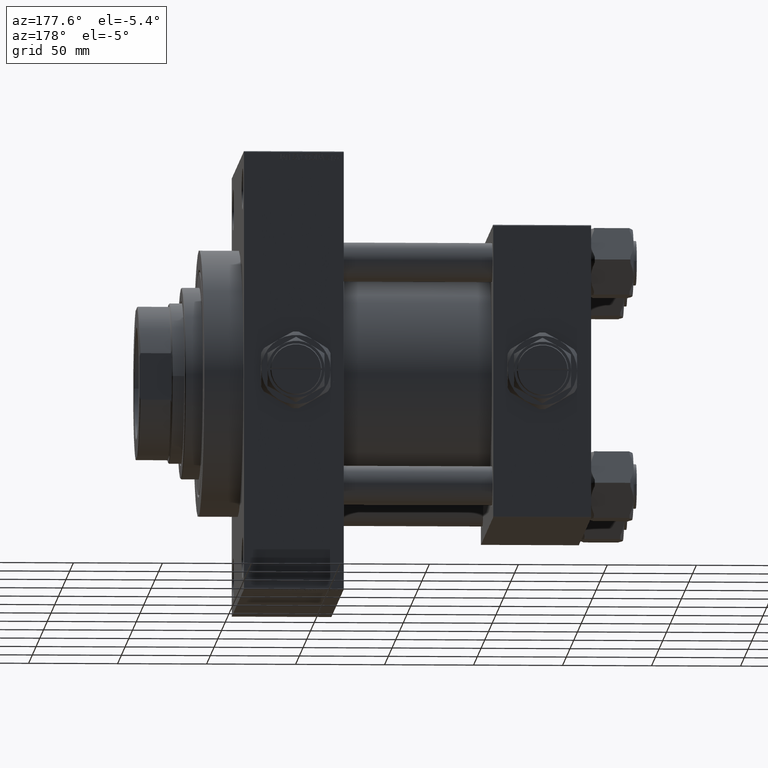
[diagram: clean part render]
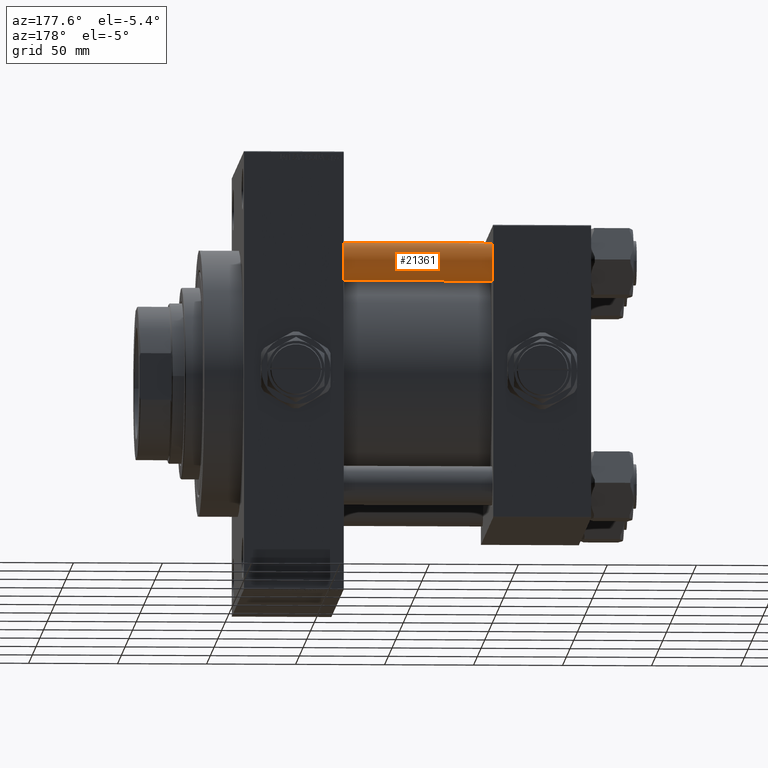
[diagram: same view with one face highlighted and labeled with its STEP entity id]
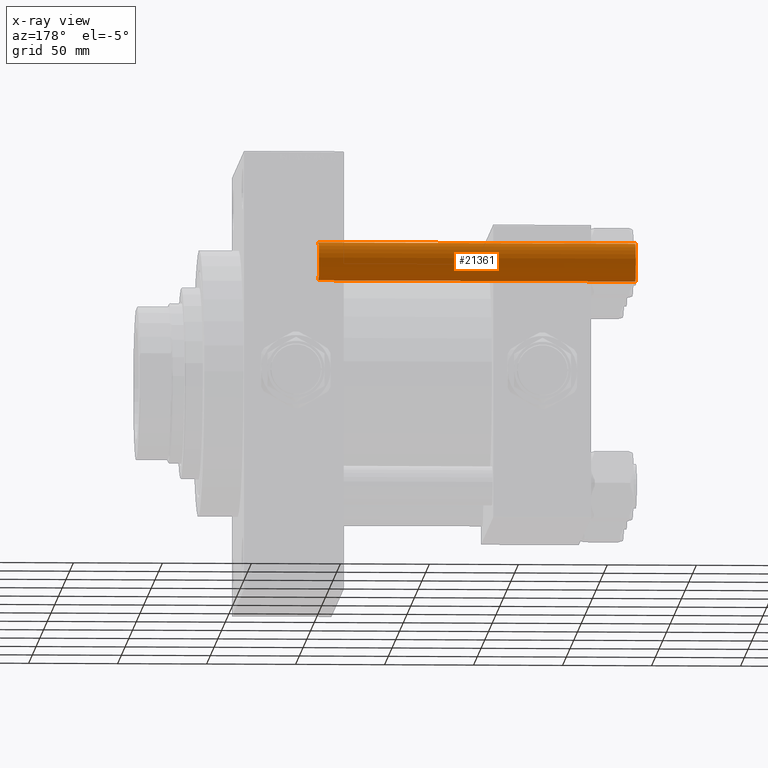
[diagram: x-ray of the same camera — body ghosted, the highlighted face saturated]
A machine part, auxiliary view. The second image highlights one B-rep face of the part: STEP entity #21361.
The next image is the same camera in x-ray: the body ghosted, the highlighted face saturated — about 0% of this face is hidden behind the body in this view.
In plain terms, the highlighted cylindrical surface (edge-blend (fillet) strip) has radius 11 mm, axis along (-1, -0, 0).
Its self-contained STEP definition (entity closure, byte-faithful):
#1793 = ORIENTED_EDGE ( 'NONE', *, *, #30232, .T. ) ;
#2095 = DIRECTION ( 'NONE',  ( -0.000000000000000000, -0.000000000000000000, -1.000000000000000000 ) ) ;
#2521 = CARTESIAN_POINT ( 'NONE',  ( 0.000000000000000000, 0.000000000000000000, 178.5000000000000853 ) ) ;
#4983 = AXIS2_PLACEMENT_3D ( 'NONE', #29468, #2095, #17549 ) ;
#8007 = VECTOR ( 'NONE', #47435, 1000.000000000000000 ) ;
#8415 = CARTESIAN_POINT ( 'NONE',  ( -11.00000000000000000, 0.000000000000000000, 178.5000000000000853 ) ) ;
#10115 = ORIENTED_EDGE ( 'NONE', *, *, #44660, .T. ) ;
#11830 = EDGE_LOOP ( 'NONE', ( #1793, #41483, #10115, #45058 ) ) ;
#12848 = EDGE_CURVE ( 'NONE', #34529, #22218, #16522, .T. ) ;
#13539 = CIRCLE ( 'NONE', #49972, 11.00000000000000000 ) ;
#13925 = DIRECTION ( 'NONE',  ( 1.000000000000000000, 0.000000000000000000, 0.000000000000000000 ) ) ;
#16235 = LINE ( 'NONE', #34725, #38546 ) ;
#16522 = LINE ( 'NONE', #31976, #8007 ) ;
#16809 = FACE_OUTER_BOUND ( 'NONE', #11830, .T. ) ;
#17549 = DIRECTION ( 'NONE',  ( -1.000000000000000000, 0.000000000000000000, 0.000000000000000000 ) ) ;
#18679 = DIRECTION ( 'NONE',  ( -0.000000000000000000, -0.000000000000000000, 1.000000000000000000 ) ) ;
#21361 = ADVANCED_FACE ( 'NONE', ( #16809 ), #25429, .T. ) ;
#22218 = VERTEX_POINT ( 'NONE', #28484 ) ;
#23790 = AXIS2_PLACEMENT_3D ( 'NONE', #2521, #41784, #13925 ) ;
#24675 = CARTESIAN_POINT ( 'NONE',  ( 11.00000000000000000, 1.347111479062088207E-15, 178.5000000000000853 ) ) ;
#25429 = CYLINDRICAL_SURFACE ( 'NONE', #4983, 11.00000000000000000 ) ;
#25544 = DIRECTION ( 'NONE',  ( 1.000000000000000000, 0.000000000000000000, 0.000000000000000000 ) ) ;
#26530 = CARTESIAN_POINT ( 'NONE',  ( 0.000000000000000000, 0.000000000000000000, 0.5000000000001392220 ) ) ;
#28484 = CARTESIAN_POINT ( 'NONE',  ( -11.00000000000000000, 0.000000000000000000, 0.5000000000001392220 ) ) ;
#29468 = CARTESIAN_POINT ( 'NONE',  ( 0.000000000000000000, 0.000000000000000000, 179.0000000000000000 ) ) ;
#30232 = EDGE_CURVE ( 'NONE', #34529, #37916, #30247, .T. ) ;
#30247 = CIRCLE ( 'NONE', #23790, 11.00000000000000000 ) ;
#31976 = CARTESIAN_POINT ( 'NONE',  ( -11.00000000000000000, 0.000000000000000000, 179.0000000000000000 ) ) ;
#33847 = VERTEX_POINT ( 'NONE', #44508 ) ;
#34529 = VERTEX_POINT ( 'NONE', #8415 ) ;
#34725 = CARTESIAN_POINT ( 'NONE',  ( 11.00000000000000000, 1.347111479062088207E-15, 179.0000000000000000 ) ) ;
#34980 = DIRECTION ( 'NONE',  ( -0.000000000000000000, -0.000000000000000000, -1.000000000000000000 ) ) ;
#37916 = VERTEX_POINT ( 'NONE', #24675 ) ;
#38546 = VECTOR ( 'NONE', #34980, 1000.000000000000000 ) ;
#41483 = ORIENTED_EDGE ( 'NONE', *, *, #41812, .T. ) ;
#41784 = DIRECTION ( 'NONE',  ( 0.000000000000000000, 0.000000000000000000, -1.000000000000000000 ) ) ;
#41812 = EDGE_CURVE ( 'NONE', #37916, #33847, #16235, .T. ) ;
#44508 = CARTESIAN_POINT ( 'NONE',  ( 11.00000000000000000, 1.347111479062088207E-15, 0.5000000000001392220 ) ) ;
#44660 = EDGE_CURVE ( 'NONE', #33847, #22218, #13539, .T. ) ;
#45058 = ORIENTED_EDGE ( 'NONE', *, *, #12848, .F. ) ;
#47435 = DIRECTION ( 'NONE',  ( -0.000000000000000000, -0.000000000000000000, -1.000000000000000000 ) ) ;
#49972 = AXIS2_PLACEMENT_3D ( 'NONE', #26530, #18679, #25544 ) ;